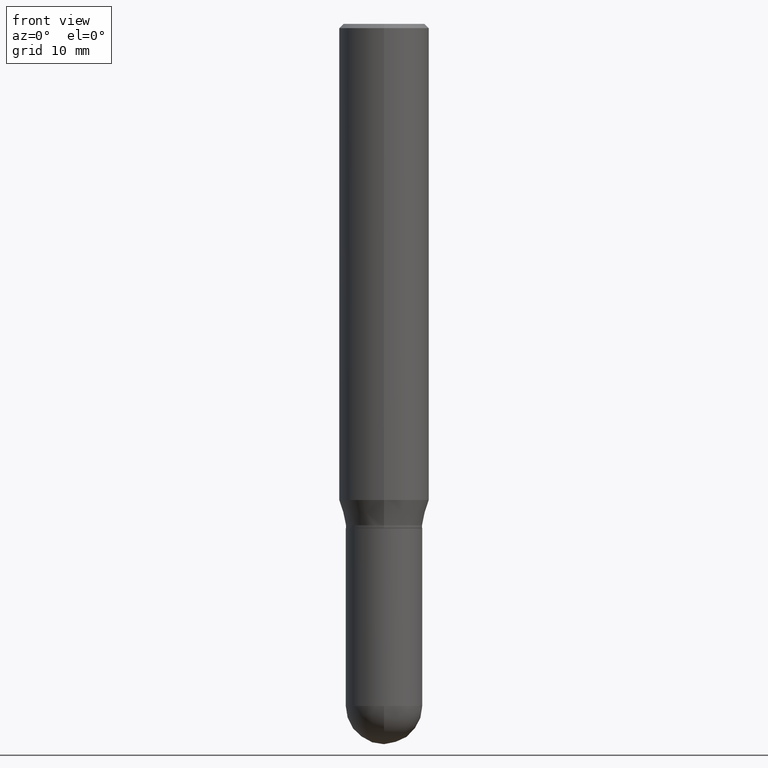
[diagram: clean part render]
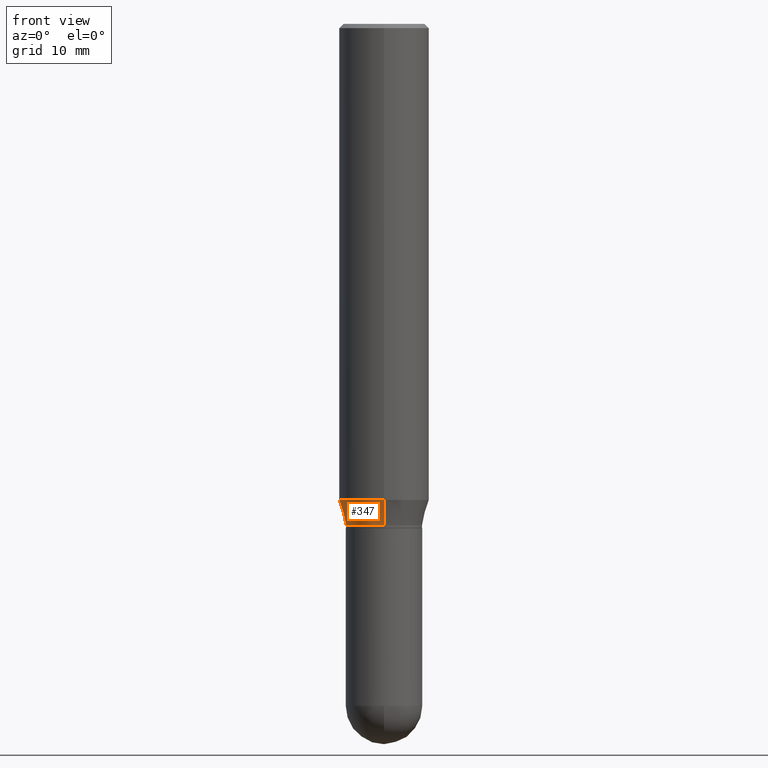
[diagram: same view with one face highlighted and labeled with its STEP entity id]
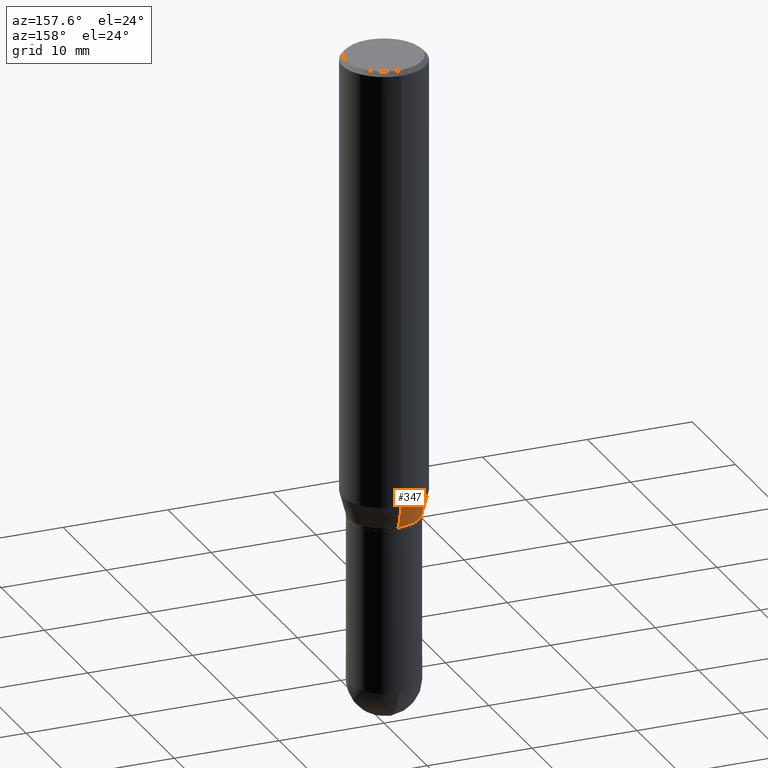
[diagram: same view with one face highlighted and labeled with its STEP entity id]
A machine part, front view. The second image highlights one B-rep face of the part: STEP entity #347.
A second angle (auxiliary view) of the same face is appended — the face is thin or edge-on in the first view.
In plain terms, the highlighted conical surface has half-angle 15 deg.
Its self-contained STEP definition (entity closure, byte-faithful):
#8 = ORIENTED_EDGE ( 'NONE', *, *, #419, .T. ) ;
#15 = DIRECTION ( 'NONE',  ( -6.982962677686265133E-15, -1.000000000000000000, 4.114228906120880627E-15 ) ) ;
#19 = CARTESIAN_POINT ( 'NONE',  ( -1.091087918388438547E-15, -0.1562500000000057454, -1.652483408562509304 ) ) ;
#44 = CONICAL_SURFACE ( 'NONE', #208, 0.1327999999999999181, 0.2617993877991504625 ) ;
#67 = DIRECTION ( 'NONE',  ( -2.445566685211260187E-29, 3.491341170506808259E-15, 1.000000000000000000 ) ) ;
#71 = EDGE_CURVE ( 'NONE', #203, #370, #334, .T. ) ;
#84 = CIRCLE ( 'NONE', #506, 0.1327999999999999181 ) ;
#86 = ORIENTED_EDGE ( 'NONE', *, *, #71, .F. ) ;
#95 = ORIENTED_EDGE ( 'NONE', *, *, #493, .T. ) ;
#120 = VECTOR ( 'NONE', #412, 39.37007874015748854 ) ;
#128 = EDGE_LOOP ( 'NONE', ( #86, #95, #8, #423 ) ) ;
#162 = CARTESIAN_POINT ( 'NONE',  ( 4.255286032267592960E-29, -6.074933636681847137E-15, -1.739999999999999991 ) ) ;
#169 = DIRECTION ( 'NONE',  ( -2.445566685211260187E-29, 3.491341170506808259E-15, 1.000000000000000000 ) ) ;
#203 = VERTEX_POINT ( 'NONE', #267 ) ;
#208 = AXIS2_PLACEMENT_3D ( 'NONE', #162, #209, #444 ) ;
#209 = DIRECTION ( 'NONE',  ( -2.445566685211260187E-29, 3.491341170506808259E-15, 1.000000000000000000 ) ) ;
#214 = VERTEX_POINT ( 'NONE', #307 ) ;
#216 = LINE ( 'NONE', #500, #120 ) ;
#267 = CARTESIAN_POINT ( 'NONE',  ( 1.026911888857325918E-15, 0.1327999999999938396, -1.740000000000000657 ) ) ;
#306 = VECTOR ( 'NONE', #329, 39.37007874015748854 ) ;
#307 = CARTESIAN_POINT ( 'NONE',  ( -9.273374435966928350E-16, -0.1328000000000059966, -1.739999999999999547 ) ) ;
#329 = DIRECTION ( 'NONE',  ( 1.839019923739601499E-15, 0.2588190451025251249, 0.9659258262890670910 ) ) ;
#334 = LINE ( 'NONE', #495, #306 ) ;
#345 = CIRCLE ( 'NONE', #450, 0.1562500000000000000 ) ;
#347 = ADVANCED_FACE ( 'NONE', ( #401 ), #44, .T. ) ;
#360 = CARTESIAN_POINT ( 'NONE',  ( 1.110223024625197167E-15, 0.1562499999999942824, -1.652483408562510414 ) ) ;
#362 = CARTESIAN_POINT ( 'NONE',  ( 4.255286032267592960E-29, -6.074933636681847137E-15, -1.739999999999999991 ) ) ;
#370 = VERTEX_POINT ( 'NONE', #360 ) ;
#376 = EDGE_CURVE ( 'NONE', #370, #421, #345, .T. ) ;
#401 = FACE_OUTER_BOUND ( 'NONE', #128, .T. ) ;
#408 = DIRECTION ( 'NONE',  ( -6.982962677686265133E-15, -1.000000000000000000, 3.496765431890256920E-15 ) ) ;
#412 = DIRECTION ( 'NONE',  ( -1.807323732225331323E-15, -0.2588190451025183525, 0.9659258262890689783 ) ) ;
#419 = EDGE_CURVE ( 'NONE', #214, #421, #216, .T. ) ;
#421 = VERTEX_POINT ( 'NONE', #19 ) ;
#423 = ORIENTED_EDGE ( 'NONE', *, *, #376, .F. ) ;
#444 = DIRECTION ( 'NONE',  ( -6.982962677686265133E-15, -1.000000000000000000, 4.114228906120880627E-15 ) ) ;
#450 = AXIS2_PLACEMENT_3D ( 'NONE', #476, #169, #408 ) ;
#476 = CARTESIAN_POINT ( 'NONE',  ( 4.041258371844822097E-29, -5.769383357893714632E-15, -1.652483408562509748 ) ) ;
#493 = EDGE_CURVE ( 'NONE', #203, #214, #84, .T. ) ;
#495 = CARTESIAN_POINT ( 'NONE',  ( 9.436007530894548662E-16, 0.1327999999999938396, -1.740000000000000657 ) ) ;
#500 = CARTESIAN_POINT ( 'NONE',  ( -9.273374435966928350E-16, -0.1328000000000059966, -1.739999999999999547 ) ) ;
#506 = AXIS2_PLACEMENT_3D ( 'NONE', #362, #67, #15 ) ;